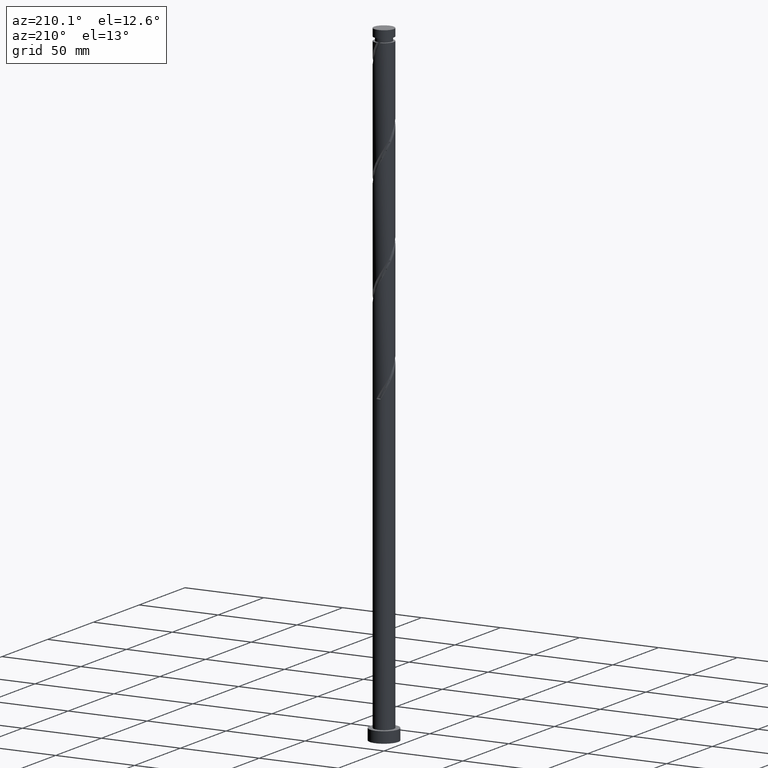
[diagram: clean part render]
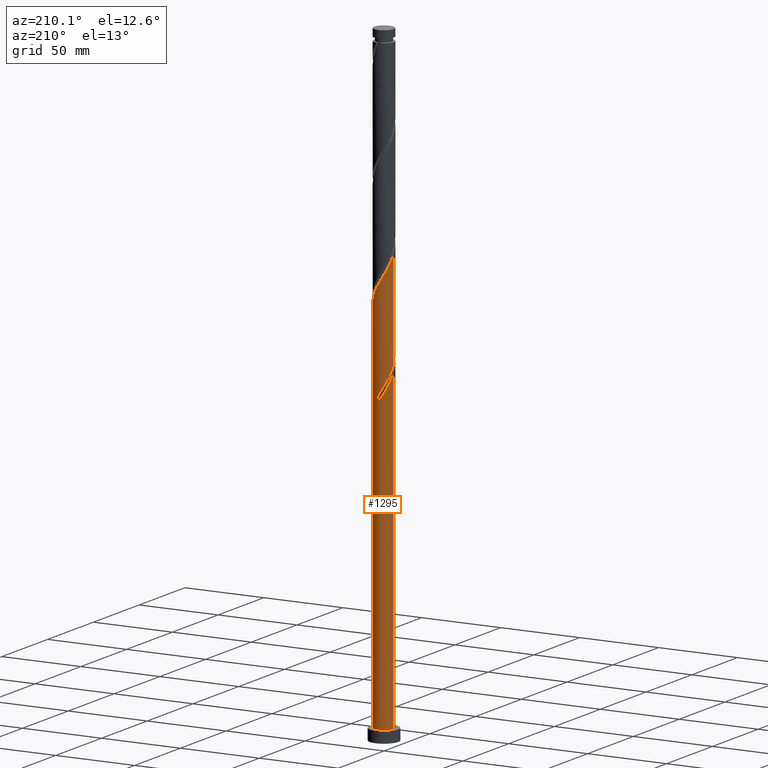
[diagram: same view with one face highlighted and labeled with its STEP entity id]
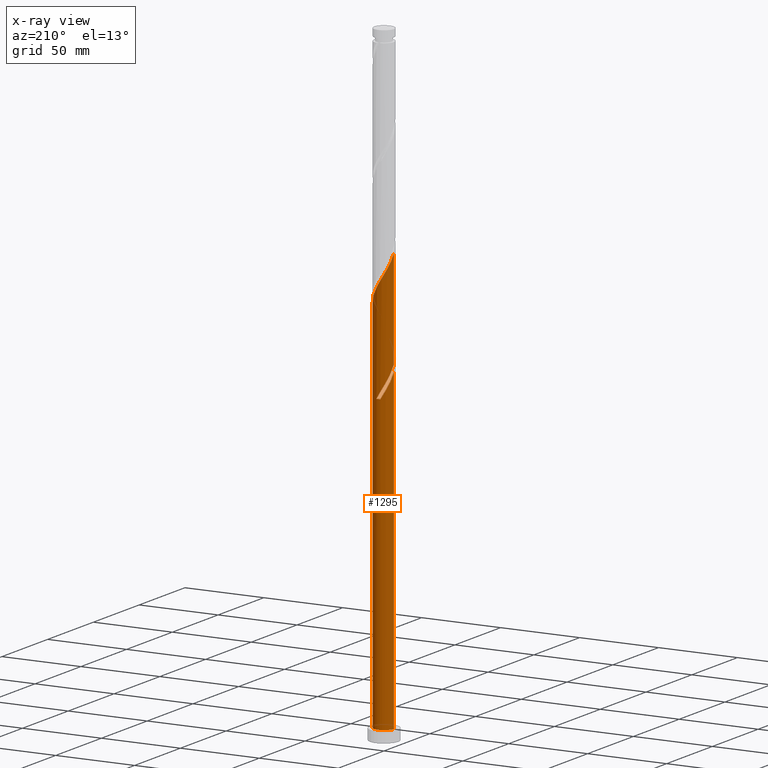
[diagram: x-ray of the same camera — body ghosted, the highlighted face saturated]
A machine part, auxiliary view. The second image highlights one B-rep face of the part: STEP entity #1295.
The next image is the same camera in x-ray: the body ghosted, the highlighted face saturated — about 0% of this face is hidden behind the body in this view.
In plain terms, the highlighted cylindrical surface (edge-blend (fillet) strip) has radius 6.25 mm, axis along (-0, -0, -1).
Its self-contained STEP definition (entity closure, byte-faithful):
#11 = ORIENTED_EDGE ( 'NONE', *, *, #1544, .T. ) ;
#35 = CARTESIAN_POINT ( 'NONE',  ( 5.764143736506378346, 2.503730521985510382, 244.9677757787005419 ) ) ;
#46 = CARTESIAN_POINT ( 'NONE',  ( 2.593982488030362354, 5.686277767731009014, 252.7455535564783133 ) ) ;
#54 = EDGE_LOOP ( 'NONE', ( #119, #11, #173, #922, #896, #613, #1714, #749 ) ) ;
#64 = EDGE_CURVE ( 'NONE', #1822, #570, #656, .T. ) ;
#69 = CIRCLE ( 'NONE', #1501, 6.250000000000000000 ) ;
#70 = CARTESIAN_POINT ( 'NONE',  ( -6.250000000000008882, -2.361849636465103295E-14, 273.9534436462902818 ) ) ;
#97 = CARTESIAN_POINT ( 'NONE',  ( -6.158738212326538175, 1.250585132590492643, 209.4122202231450558 ) ) ;
#98 = CARTESIAN_POINT ( 'NONE',  ( 6.250000000000000000, 7.654042494670957606E-16, 400.0000000000000000 ) ) ;
#113 = CARTESIAN_POINT ( 'NONE',  ( -4.162407600581770950, 4.708331180837500796, 198.3011091120338847 ) ) ;
#119 = ORIENTED_EDGE ( 'NONE', *, *, #1456, .F. ) ;
#173 = ORIENTED_EDGE ( 'NONE', *, *, #829, .T. ) ;
#205 = CARTESIAN_POINT ( 'NONE',  ( 3.719541372160795945, 5.022699670574013453, 250.5233313342561416 ) ) ;
#214 = DIRECTION ( 'NONE',  ( -1.000000000000000000, 0.000000000000000000, 0.000000000000000000 ) ) ;
#255 = CARTESIAN_POINT ( 'NONE',  ( -6.221452243844894703, 0.5966841522592485347, 210.5233313342560564 ) ) ;
#265 =( BOUNDED_CURVE ( )  B_SPLINE_CURVE ( 2, ( #697, #870, #255, #97, #1931, #1318, #1647, #1308, #707, #1919, #541, #1765, #520, #879, #1131, #1018, #1606, #1143, #1910 ),
 .UNSPECIFIED., .F., .T. ) 
 B_SPLINE_CURVE_WITH_KNOTS ( ( 3, 2, 2, 2, 2, 2, 2, 2, 2, 3 ),
 ( 0.9295286012773115170, 0.9333333333333333481, 0.9416666666666666519, 0.9499999999999999556, 0.9583333333333333703, 0.9666666666666666741, 0.9749999999999999778, 0.9833333333333332815, 0.9916666666666666963, 1.000000000000000000 ),
 .UNSPECIFIED. ) 
 CURVE ( )  GEOMETRIC_REPRESENTATION_ITEM ( )  RATIONAL_B_SPLINE_CURVE ( ( 0.9066196499552214849, 0.9068171577856342092, 0.9090909090909331525, 0.9041108139711813152, 0.9090909090909331525, 0.9041108139711813152, 0.9090909090909331525, 0.9041108139711813152, 0.9090909090909331525, 0.9041108139711813152, 0.9090909090909331525, 0.9041108139711813152, 0.9090909090909331525, 0.9041108139711813152, 0.9090909090909331525, 0.9041108139711813152, 0.9090909090909331525, 0.9041108139711813152, 0.9090909090909331525 ) ) 
 REPRESENTATION_ITEM ( '' )  );
#267 = CARTESIAN_POINT ( 'NONE',  ( -5.050366104523118516, 3.740029645886720822, 267.1899980009227988 ) ) ;
#288 = CARTESIAN_POINT ( 'NONE',  ( -3.092531911047312843, 5.470856050106017499, 262.7455535564783418 ) ) ;
#289 = CARTESIAN_POINT ( 'NONE',  ( -6.209556196377223891, 0.7098674834314691040, 206.0788868898116846 ) ) ;
#299 = VERTEX_POINT ( 'NONE', #854 ) ;
#324 = VERTEX_POINT ( 'NONE', #70 ) ;
#337 = CARTESIAN_POINT ( 'NONE',  ( -6.250000000000000000, 0.000000000000000000, 7.000000000000000000 ) ) ;
#372 = CARTESIAN_POINT ( 'NONE',  ( -1.243734296383279370, 6.125000000000010658, 259.4122202231450842 ) ) ;
#391 = CARTESIAN_POINT ( 'NONE',  ( 0.000000000000000000, 0.000000000000000000, 7.000000000000000000 ) ) ;
#401 = CARTESIAN_POINT ( 'NONE',  ( 6.221452243844905361, 0.5966841522592428726, 241.6344424453672843 ) ) ;
#409 = EDGE_CURVE ( 'NONE', #831, #1822, #1438, .T. ) ;
#423 = CARTESIAN_POINT ( 'NONE',  ( -6.209556196377223891, 0.7098674834314691040, 272.7455535564783986 ) ) ;
#460 = VERTEX_POINT ( 'NONE', #1981 ) ;
#498 = VECTOR ( 'NONE', #1638, 1000.000000000000000 ) ;
#520 = CARTESIAN_POINT ( 'NONE',  ( -2.593982488030357025, 5.686277767731000132, 199.4122202231449421 ) ) ;
#521 = CARTESIAN_POINT ( 'NONE',  ( 0.7137776319832607186, 6.243760167872234312, 256.0788868898115993 ) ) ;
#541 = CARTESIAN_POINT ( 'NONE',  ( -3.719541372160786619, 5.022699670574008124, 201.6344424453672275 ) ) ;
#550 = CARTESIAN_POINT ( 'NONE',  ( 0.000000000000000000, 0.000000000000000000, 400.0000000000000000 ) ) ;
#570 = VERTEX_POINT ( 'NONE', #337 ) ;
#596 = CARTESIAN_POINT ( 'NONE',  ( -6.134946117391189446, 1.362518138790940636, 204.9677757787005419 ) ) ;
#599 = CIRCLE ( 'NONE', #796, 6.250000000000000000 ) ;
#603 = DIRECTION ( 'NONE',  ( 0.000000000000000000, 1.000000000000000000, -3.108624468950438313E-14 ) ) ;
#613 = ORIENTED_EDGE ( 'NONE', *, *, #1480, .T. ) ;
#641 = EDGE_CURVE ( 'NONE', #324, #899, #947, .T. ) ;
#656 = LINE ( 'NONE', #667, #1811 ) ;
#665 = CARTESIAN_POINT ( 'NONE',  ( 5.440886128238424213, 3.075590697661642281, 246.0788868898117130 ) ) ;
#667 = CARTESIAN_POINT ( 'NONE',  ( -6.250000000000000000, 0.000000000000000000, 400.0000000000000000 ) ) ;
#675 = CARTESIAN_POINT ( 'NONE',  ( 1.996330611744778771, 5.958916313427994993, 253.8566646675893992 ) ) ;
#678 = DIRECTION ( 'NONE',  ( -0.000000000000000000, -0.000000000000000000, -1.000000000000000000 ) ) ;
#697 = CARTESIAN_POINT ( 'NONE',  ( -6.250000000000003553, 9.058739744923171456E-15, 211.5376634666664586 ) ) ;
#707 = CARTESIAN_POINT ( 'NONE',  ( -4.682538449988047802, 4.139605496225884806, 203.8566646675894845 ) ) ;
#708 = CARTESIAN_POINT ( 'NONE',  ( 6.250000000000009770, 0.2990249955421828143, 241.1286588385208915 ) ) ;
#717 = CARTESIAN_POINT ( 'NONE',  ( -6.250000000000003553, 9.058739744923171456E-15, 211.5376634666664586 ) ) ;
#749 = ORIENTED_EDGE ( 'NONE', *, *, #641, .F. ) ;
#760 = CARTESIAN_POINT ( 'NONE',  ( -2.490014824216431055, 5.732567154005485222, 261.6344424453672559 ) ) ;
#761 = CARTESIAN_POINT ( 'NONE',  ( -6.250000000000008882, 0.3560858590401956847, 206.6811856702389605 ) ) ;
#772 = EDGE_CURVE ( 'NONE', #899, #1269, #265, .T. ) ;
#796 = AXIS2_PLACEMENT_3D ( 'NONE', #391, #1152, #1493 ) ;
#828 = CARTESIAN_POINT ( 'NONE',  ( 3.191634364315950823, 5.413639222034017706, 251.6344424453672559 ) ) ;
#829 = EDGE_CURVE ( 'NONE', #299, #570, #599, .T. ) ;
#831 = VERTEX_POINT ( 'NONE', #1163 ) ;
#852 = CYLINDRICAL_SURFACE ( 'NONE', #1108, 6.250000000000000000 ) ;
#854 = CARTESIAN_POINT ( 'NONE',  ( 6.250000000000000000, 7.654042494670957606E-16, 7.000000000000000000 ) ) ;
#870 = CARTESIAN_POINT ( 'NONE',  ( -6.250000000000001776, 0.2990249955421905304, 211.0291149411024207 ) ) ;
#879 = CARTESIAN_POINT ( 'NONE',  ( -1.996330611744771666, 5.958916313427988776, 198.3011091120339131 ) ) ;
#893 = CARTESIAN_POINT ( 'NONE',  ( -1.243734296383279370, 6.125000000000009770, 192.7455535564783133 ) ) ;
#896 = ORIENTED_EDGE ( 'NONE', *, *, #409, .F. ) ;
#899 = VERTEX_POINT ( 'NONE', #717 ) ;
#902 = CARTESIAN_POINT ( 'NONE',  ( -5.717599375351478663, 2.608270868757298633, 269.4122202231449137 ) ) ;
#922 = ORIENTED_EDGE ( 'NONE', *, *, #64, .F. ) ;
#947 = LINE ( 'NONE', #1439, #1598 ) ;
#979 = CARTESIAN_POINT ( 'NONE',  ( 4.682538449988057572, 4.139605496225886583, 248.3011091120339415 ) ) ;
#1018 = CARTESIAN_POINT ( 'NONE',  ( -0.7137776319832572769, 6.243760167872227207, 196.0788868898117130 ) ) ;
#1028 = CARTESIAN_POINT ( 'NONE',  ( -3.627469755814543007, 5.089593615471760479, 263.8566646675894845 ) ) ;
#1075 = CARTESIAN_POINT ( 'NONE',  ( -6.250000000000008882, 1.130100205802290084E-14, 207.2867769796235393 ) ) ;
#1108 = AXIS2_PLACEMENT_3D ( 'NONE', #550, #1153, #214 ) ;
#1131 = CARTESIAN_POINT ( 'NONE',  ( -1.355054121864014194, 6.101338240650104439, 197.1899980009227420 ) ) ;
#1132 = CARTESIAN_POINT ( 'NONE',  ( 0.05690338830112708080, 6.249740954983652230, 257.1899980009227988 ) ) ;
#1143 = CARTESIAN_POINT ( 'NONE',  ( 0.5999708553810115808, 6.255721742095059490, 193.8566646675893992 ) ) ;
#1152 = DIRECTION ( 'NONE',  ( 0.000000000000000000, 0.000000000000000000, 1.000000000000000000 ) ) ;
#1153 = DIRECTION ( 'NONE',  ( -0.000000000000000000, -0.000000000000000000, -1.000000000000000000 ) ) ;
#1163 = CARTESIAN_POINT ( 'NONE',  ( -1.243734296383279370, 6.125000000000009770, 192.7455535564783133 ) ) ;
#1189 = CARTESIAN_POINT ( 'NONE',  ( -6.250000000000008882, -2.361849636465103295E-14, 273.9534436462902818 ) ) ;
#1201 = CARTESIAN_POINT ( 'NONE',  ( -4.606386852552446065, 4.224180413362113029, 199.4122202231450274 ) ) ;
#1211 = CARTESIAN_POINT ( 'NONE',  ( -5.383982739937297701, 3.174150257322010393, 201.6344424453672559 ) ) ;
#1247 = DIRECTION ( 'NONE',  ( -0.000000000000000000, -0.000000000000000000, -1.000000000000000000 ) ) ;
#1269 = VERTEX_POINT ( 'NONE', #1920 ) ;
#1288 = CARTESIAN_POINT ( 'NONE',  ( 1.355054121864022187, 6.101338240650115097, 254.9677757787005703 ) ) ;
#1295 = ADVANCED_FACE ( 'NONE', ( #1585 ), #852, .T. ) ;
#1308 = CARTESIAN_POINT ( 'NONE',  ( -5.117628519970460310, 3.647450873337766630, 204.9677757787005987 ) ) ;
#1318 = CARTESIAN_POINT ( 'NONE',  ( -5.764143736506368576, 2.503730521985514379, 207.1899980009228273 ) ) ;
#1319 = CARTESIAN_POINT ( 'NONE',  ( 5.961440974416463590, 1.877157827288001624, 243.8566646675894845 ) ) ;
#1368 = CARTESIAN_POINT ( 'NONE',  ( 0.000000000000000000, 0.000000000000000000, 192.7455535564785407 ) ) ;
#1385 =( BOUNDED_CURVE ( )  B_SPLINE_CURVE ( 2, ( #1471, #708, #401, #1430, #1319, #35, #665, #1746, #979, #1595, #205, #828, #46, #675, #1288, #521, #1132, #1757, #372, #1988, #760, #288, #1028, #1504, #1962, #267, #1980, #902, #1671, #1815, #423, #1514, #1189 ),
 .UNSPECIFIED., .F., .T. ) 
 B_SPLINE_CURVE_WITH_KNOTS ( ( 3, 2, 2, 2, 2, 2, 2, 2, 2, 2, 2, 2, 2, 2, 2, 2, 3 ),
 ( 0.1795286012773114892, 0.1833333333333333481, 0.1916666666666666519, 0.1999999999999999556, 0.2083333333333333703, 0.2166666666666666741, 0.2249999999999999778, 0.2333333333333332815, 0.2416666666666666963, 0.2500000000000000000, 0.2583333333333333037, 0.2666666666666667185, 0.2750000000000000222, 0.2833333333333333259, 0.2916666666666666297, 0.3000000000000000444, 0.3045286012773114614 ),
 .UNSPECIFIED. ) 
 CURVE ( )  GEOMETRIC_REPRESENTATION_ITEM ( )  RATIONAL_B_SPLINE_CURVE ( ( 0.9066196499552265919, 0.9068171577856394272, 0.9090909090909382595, 0.9041108139711866443, 0.9090909090909382595, 0.9041108139711866443, 0.9090909090909382595, 0.9041108139711866443, 0.9090909090909382595, 0.9041108139711866443, 0.9090909090909382595, 0.9041108139711866443, 0.9090909090909382595, 0.9041108139711866443, 0.9090909090909382595, 0.9041108139711866443, 0.9090909090909382595, 0.9041108139711866443, 0.9090909090909382595, 0.9041108139711866443, 0.9090909090909382595, 0.9041108139711866443, 0.9090909090909382595, 0.9041108139711866443, 0.9090909090909382595, 0.9041108139711866443, 0.9090909090909382595, 0.9041108139711866443, 0.9090909090909382595, 0.9041108139711866443, 0.9090909090909382595, 0.9063845652764854766, 0.9066196499552267030 ) ) 
 REPRESENTATION_ITEM ( '' )  );
#1430 = CARTESIAN_POINT ( 'NONE',  ( 6.158738212326547057, 1.250585132590491755, 242.7455535564783418 ) ) ;
#1438 =( BOUNDED_CURVE ( )  B_SPLINE_CURVE ( 2, ( #893, #1681, #1855, #1660, #1506, #113, #1201, #1973, #1211, #1688, #1817, #596, #289, #761, #1672 ),
 .UNSPECIFIED., .F., .T. ) 
 B_SPLINE_CURVE_WITH_KNOTS ( ( 3, 2, 2, 2, 2, 2, 2, 3 ),
 ( 0.000000000000000000, 0.008333333333333303727, 0.01666666666666671848, 0.02500000000000002220, 0.03333333333333332593, 0.04166666666666662966, 0.05000000000000004441, 0.05452860127731158635 ),
 .UNSPECIFIED. ) 
 CURVE ( )  GEOMETRIC_REPRESENTATION_ITEM ( )  RATIONAL_B_SPLINE_CURVE ( ( 0.9090909090909382595, 0.9041108139711866443, 0.9090909090909382595, 0.9041108139711866443, 0.9090909090909382595, 0.9041108139711866443, 0.9090909090909382595, 0.9041108139711866443, 0.9090909090909382595, 0.9041108139711866443, 0.9090909090909382595, 0.9041108139711866443, 0.9090909090909382595, 0.9063845652764854766, 0.9066196499552267030 ) ) 
 REPRESENTATION_ITEM ( '' )  );
#1439 = CARTESIAN_POINT ( 'NONE',  ( -6.250000000000000000, 0.000000000000000000, 400.0000000000000000 ) ) ;
#1456 = EDGE_CURVE ( 'NONE', #460, #324, #1385, .T. ) ;
#1471 = CARTESIAN_POINT ( 'NONE',  ( 6.250000000000008882, 4.036072163579606767E-15, 240.6201103129568537 ) ) ;
#1480 = EDGE_CURVE ( 'NONE', #831, #1269, #69, .T. ) ;
#1482 = DIRECTION ( 'NONE',  ( -4.930380657631319580E-30, -3.330669073875467728E-14, -1.000000000000000000 ) ) ;
#1493 = DIRECTION ( 'NONE',  ( 1.000000000000000000, 0.000000000000000000, 0.000000000000000000 ) ) ;
#1501 = AXIS2_PLACEMENT_3D ( 'NONE', #1368, #1482, #603 ) ;
#1504 = CARTESIAN_POINT ( 'NONE',  ( -4.162407600581770950, 4.708331180837500796, 264.9677757787005703 ) ) ;
#1506 = CARTESIAN_POINT ( 'NONE',  ( -3.627469755814543007, 5.089593615471760479, 197.1899980009227988 ) ) ;
#1514 = CARTESIAN_POINT ( 'NONE',  ( -6.250000000000007105, 0.3560858590402055657, 273.3478523369056461 ) ) ;
#1544 = EDGE_CURVE ( 'NONE', #460, #299, #1971, .T. ) ;
#1585 = FACE_OUTER_BOUND ( 'NONE', #54, .T. ) ;
#1595 = CARTESIAN_POINT ( 'NONE',  ( 4.247448380005641511, 4.631760119114008312, 249.4122202231450274 ) ) ;
#1598 = VECTOR ( 'NONE', #1247, 1000.000000000000000 ) ;
#1606 = CARTESIAN_POINT ( 'NONE',  ( -0.05690338830112281338, 6.249740954983644237, 194.9677757787004850 ) ) ;
#1638 = DIRECTION ( 'NONE',  ( -0.000000000000000000, -0.000000000000000000, -1.000000000000000000 ) ) ;
#1647 = CARTESIAN_POINT ( 'NONE',  ( -5.440886128238414443, 3.075590697661639172, 206.0788868898116561 ) ) ;
#1660 = CARTESIAN_POINT ( 'NONE',  ( -3.092531911047312843, 5.470856050106017499, 196.0788868898117414 ) ) ;
#1671 = CARTESIAN_POINT ( 'NONE',  ( -5.926272746371335387, 1.985394503774120301, 270.5233313342561132 ) ) ;
#1672 = CARTESIAN_POINT ( 'NONE',  ( -6.250000000000008882, 1.130100205802290084E-14, 207.2867769796235393 ) ) ;
#1681 = CARTESIAN_POINT ( 'NONE',  ( -1.887497737385549934, 5.994278257904948504, 193.8566646675893992 ) ) ;
#1688 = CARTESIAN_POINT ( 'NONE',  ( -5.717599375351478663, 2.608270868757298633, 202.7455535564783418 ) ) ;
#1714 = ORIENTED_EDGE ( 'NONE', *, *, #772, .F. ) ;
#1746 = CARTESIAN_POINT ( 'NONE',  ( 5.117628519970468304, 3.647450873337766186, 247.1899980009227704 ) ) ;
#1757 = CARTESIAN_POINT ( 'NONE',  ( -0.5999708553810062517, 6.255721742095069260, 258.3011091120338278 ) ) ;
#1765 = CARTESIAN_POINT ( 'NONE',  ( -3.191634364315941053, 5.413639222034015042, 200.5233313342561416 ) ) ;
#1811 = VECTOR ( 'NONE', #678, 1000.000000000000000 ) ;
#1815 = CARTESIAN_POINT ( 'NONE',  ( -6.134946117391189446, 1.362518138790940636, 271.6344424453672559 ) ) ;
#1817 = CARTESIAN_POINT ( 'NONE',  ( -5.926272746371335387, 1.985394503774120301, 203.8566646675895413 ) ) ;
#1822 = VERTEX_POINT ( 'NONE', #1075 ) ;
#1855 = CARTESIAN_POINT ( 'NONE',  ( -2.490014824216431055, 5.732567154005485222, 194.9677757787006271 ) ) ;
#1910 = CARTESIAN_POINT ( 'NONE',  ( 1.243734296383281146, 6.124999999999999112, 192.7455535564783133 ) ) ;
#1919 = CARTESIAN_POINT ( 'NONE',  ( -4.247448380005636182, 4.631760119114005647, 202.7455535564783418 ) ) ;
#1920 = CARTESIAN_POINT ( 'NONE',  ( 1.243734296383281146, 6.124999999999999112, 192.7455535564783133 ) ) ;
#1931 = CARTESIAN_POINT ( 'NONE',  ( -5.961440974416452931, 1.877157827288003622, 208.3011091120338563 ) ) ;
#1962 = CARTESIAN_POINT ( 'NONE',  ( -4.606386852552446065, 4.224180413362113029, 266.0788868898117130 ) ) ;
#1971 = LINE ( 'NONE', #98, #498 ) ;
#1973 = CARTESIAN_POINT ( 'NONE',  ( -5.050366104523118516, 3.740029645886720822, 200.5233313342561132 ) ) ;
#1980 = CARTESIAN_POINT ( 'NONE',  ( -5.383982739937297701, 3.174150257322010393, 268.3011091120338847 ) ) ;
#1981 = CARTESIAN_POINT ( 'NONE',  ( 6.250000000000008882, 4.036072163579607556E-15, 240.6201103129568821 ) ) ;
#1988 = CARTESIAN_POINT ( 'NONE',  ( -1.887497737385549934, 5.994278257904948504, 260.5233313342561701 ) ) ;